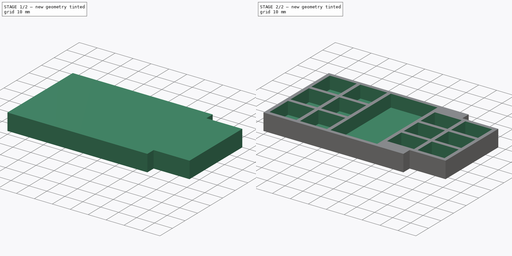
[diagram: build sequence overview — one tinted view per stage of 2, left to right]
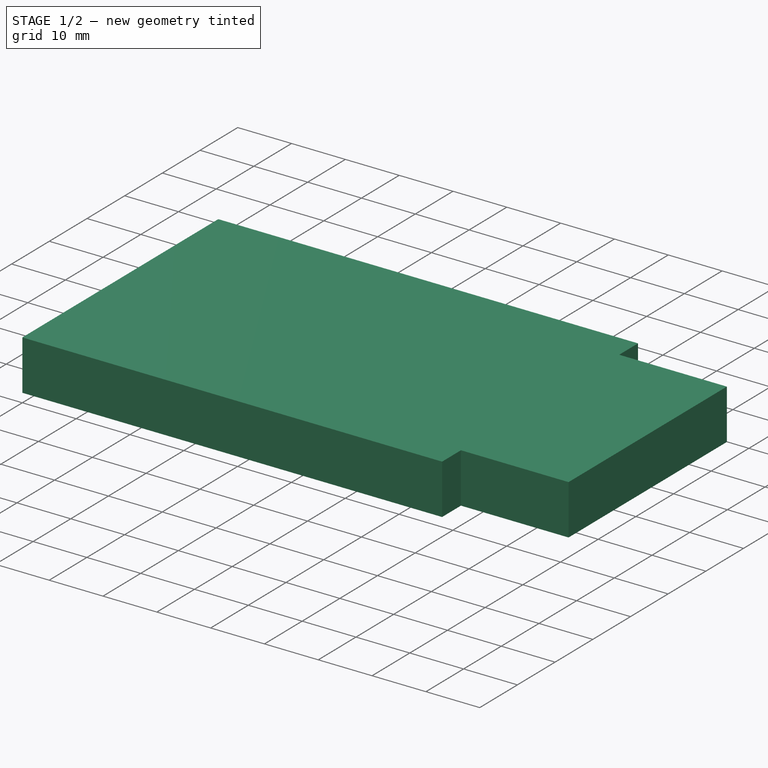
[diagram: stage 1 of 2 — iso view after this stage's code; geometry added in this stage tinted green]
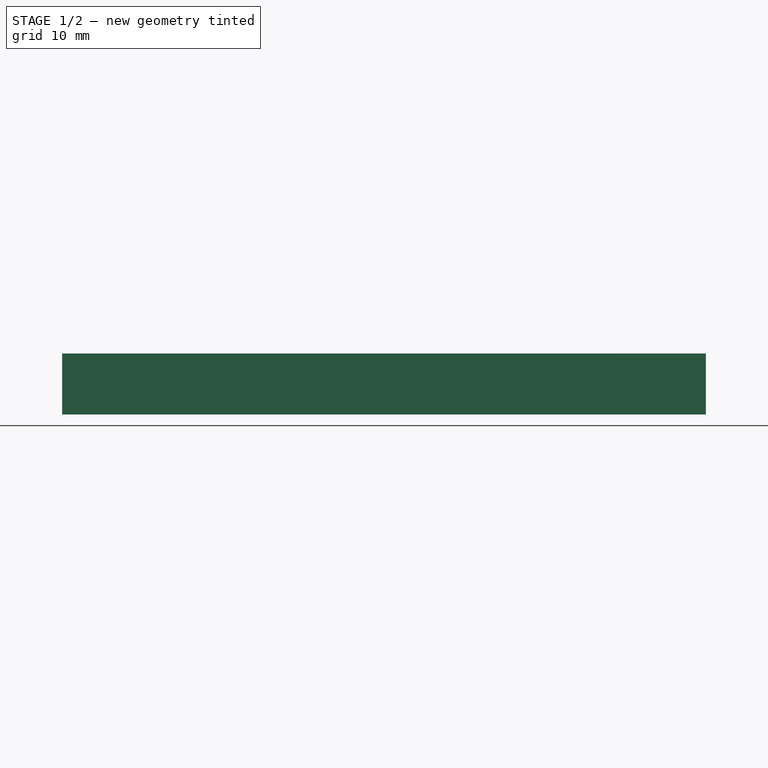
[diagram: stage 1 of 2 — front view after this stage's code; geometry added in this stage tinted green]
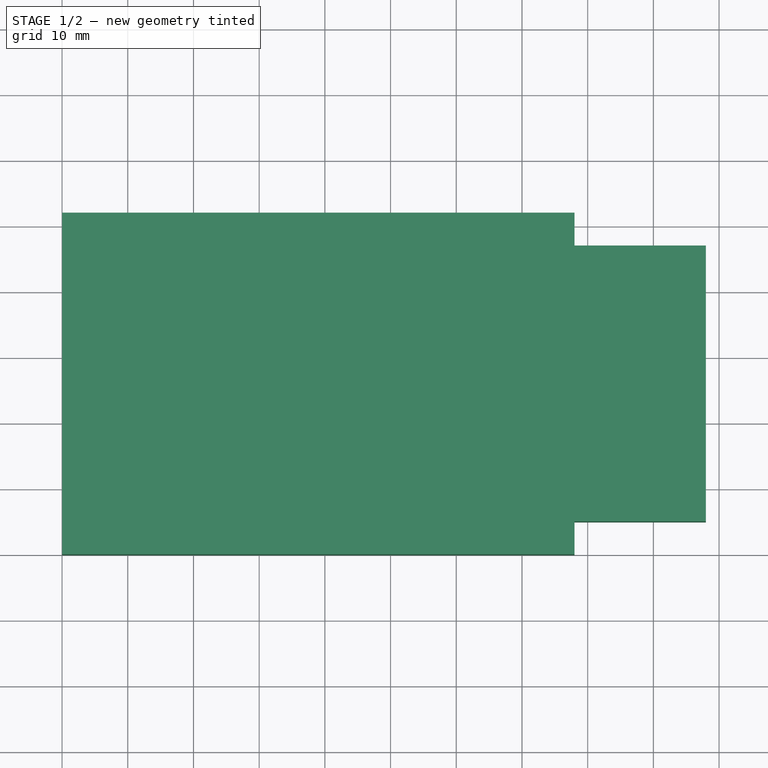
[diagram: stage 1 of 2 — top view after this stage's code; geometry added in this stage tinted green]
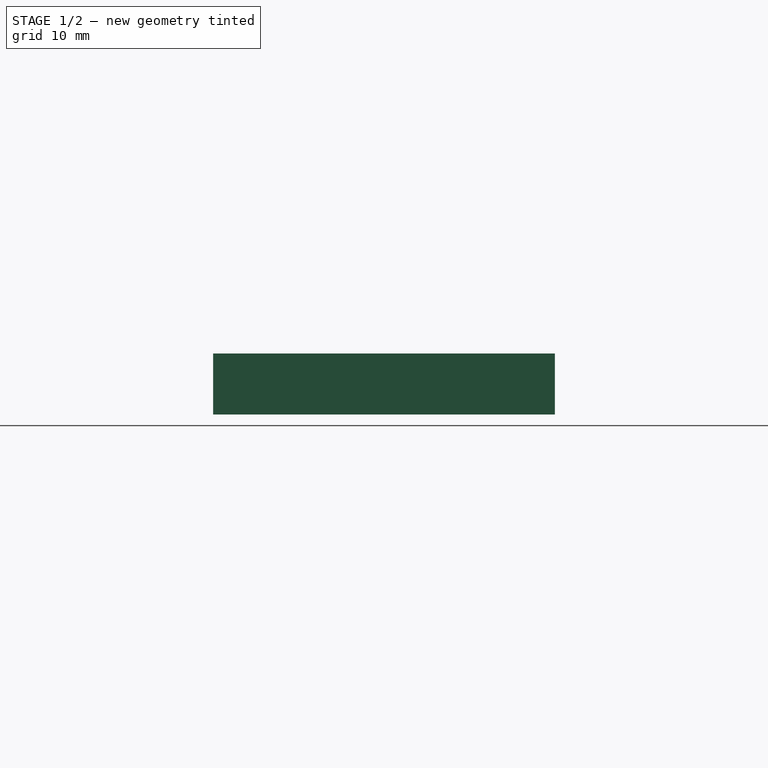
[diagram: stage 1 of 2 — right view after this stage's code; geometry added in this stage tinted green]
FCSTD DOCUMENT  (FreeCAD 0.20R29410 (Git))
Label: paintbox-lower-insert
License: All rights reserved
LicenseURL: http://en.wikipedia.org/wiki/All_rights_reserved
objects: Sketcher::SketchObject×3, PartDesign::Pocket×2, Spreadsheet::Sheet×1, PartDesign::Pad×1, PartDesign::Body×1
note: 10 computed .brp shape members not serialized (recipe doc carries the construction recipe); baked Part::Feature solids carry a one-line shape summary decoded from their .brp

FEATURE [Spreadsheet::Sheet] Spreadsheet  label="p"
  cells = A1=length; B1(length)=98; A2=width; B2(width)=52; A3=height; B3(height)=9.300000000000001; A4=notch_length; B4(notch_length)=20; A5=notch_inset; B5(notch_inset)=5; A6=pan_space; B6(pan_space)=2; A7=pan_length; B7(pan_length)=15; A8=pan_height; B8(pan_height)==44 / 3; A9=pan_height2; B9(pan_height2)==34 / 3; A10=pan_depth; B10(pan_depth)=7
FEATURE [Sketcher::SketchObject] Sketch
  FullyConstrained = true
  MapMode = 5
  Support = -> [XY_Plane]
  expr: Constraints[10] = <<p>>.width
  expr: Constraints[9] = <<p>>.length
  sketch-geometry (4):
    g0: LineSegment StartX=0 StartY=0 StartZ=0 EndX=98 EndY=0 EndZ=0
    g1: LineSegment StartX=98 StartY=0 StartZ=0 EndX=98 EndY=52 EndZ=0
    g2: LineSegment StartX=98 StartY=52 StartZ=0 EndX=0 EndY=52 EndZ=0
    g3: LineSegment StartX=0 StartY=52 StartZ=0 EndX=0 EndY=0 EndZ=0
  constraints (11):
    c: Coincident(g0,g1)
    c: Coincident(g1,g2)
    c: Coincident(g2,g3)
    c: Coincident(g3,g0)
    c: Horizontal(g0)
    c: Horizontal(g2)
    c: Vertical(g1)
    c: Vertical(g3)
    c: Coincident(g0,g-1)
    c: DistanceX(g2,g2) = 98
    c: DistanceY(g1,g1) = 52
FEATURE [PartDesign::Pad] Pad
  Direction = (0,0,1)
  Length = 9.3
  Length2 = 10
  Profile = -> Sketch
  ReferenceAxis = -> Sketch [N_Axis]
  Type = 0
  expr: Length = <<p>>.height
FEATURE [Sketcher::SketchObject] Sketch001
  ExternalGeometry = -> [Pad]
  FullyConstrained = true
  MapMode = 5
  Placement = pos=(0,0,9.3) rot=(0,0,1;0rad)
  Support = -> [Pad]
  expr: Constraints[10] = <<p>>.notch_inset
  expr: Constraints[20] = <<p>>.notch_length
  expr: Constraints[21] = <<p>>.notch_inset
  expr: Constraints[9] = <<p>>.notch_length
  sketch-geometry (8):
    g0: LineSegment StartX=98 StartY=52 StartZ=0 EndX=78 EndY=52 EndZ=0
    g1: LineSegment StartX=78 StartY=52 StartZ=0 EndX=78 EndY=47 EndZ=0
    g2: LineSegment StartX=78 StartY=47 StartZ=0 EndX=98 EndY=47 EndZ=0
    g3: LineSegment StartX=98 StartY=47 StartZ=0 EndX=98 EndY=52 EndZ=0
    g4: LineSegment StartX=98 StartY=0 StartZ=0 EndX=78 EndY=0 EndZ=0
    g5: LineSegment StartX=78 StartY=0 StartZ=0 EndX=78 EndY=5 EndZ=0
    g6: LineSegment StartX=78 StartY=5 StartZ=0 EndX=98 EndY=5 EndZ=0
    g7: LineSegment StartX=98 StartY=5 StartZ=0 EndX=98 EndY=0 EndZ=0
  constraints (22):
    c: Coincident(g0,g1)
    c: Coincident(g1,g2)
    c: Coincident(g2,g3)
    c: Coincident(g3,g0)
    c: Horizontal(g0)
    c: Horizontal(g2)
    c: Vertical(g1)
    c: Vertical(g3)
    c: Coincident(g0,g-3)
    c: DistanceX(g0,g0) = 20
    c: DistanceY(g1,g1) = 5
    c: Coincident(g4,g5)
    c: Coincident(g5,g6)
    c: Coincident(g6,g7)
    c: Coincident(g7,g4)
    c: Horizontal(g4)
    c: Horizontal(g6)
    c: Vertical(g5)
    c: Vertical(g7)
    c: Coincident(g4,g-3)
    c: DistanceX(g6,g6) = 20
    c: DistanceY(g5,g5) = 5
FEATURE [PartDesign::Pocket] Pocket
  BaseFeature = -> Pad
  Direction = (0,0,-1)
  Length = 5
  Length2 = 5
  Profile = -> Sketch001
  ReferenceAxis = -> Sketch001 [N_Axis]
  Type = 1
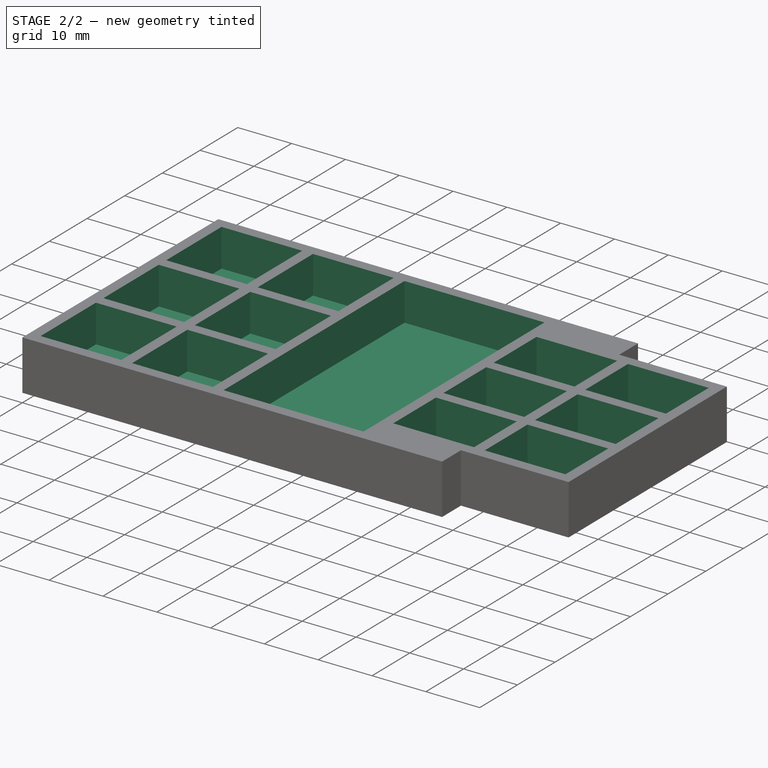
[diagram: stage 2 of 2 — iso view after this stage's code; geometry added in this stage tinted green]
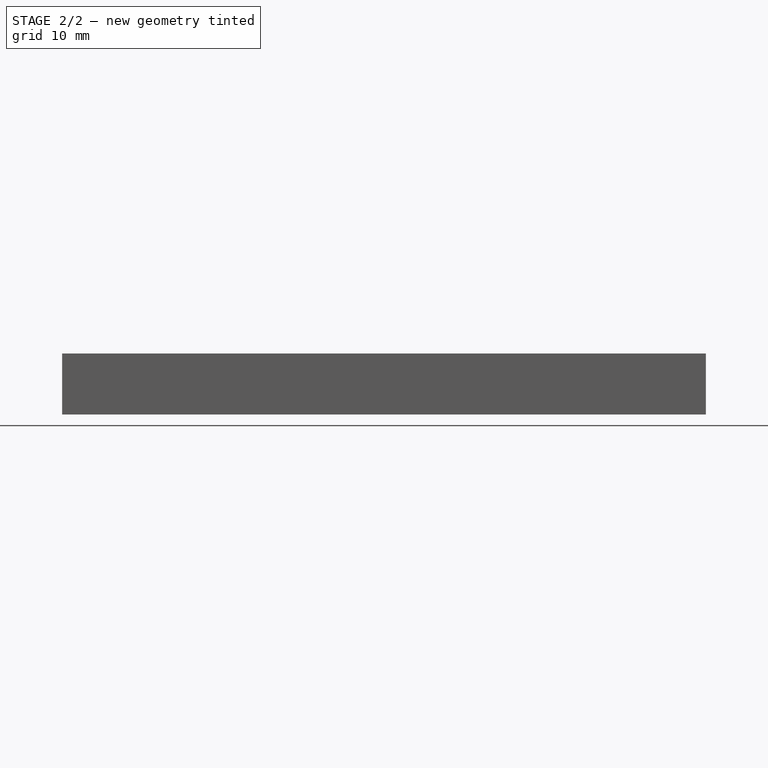
[diagram: stage 2 of 2 — front view after this stage's code; geometry added in this stage tinted green]
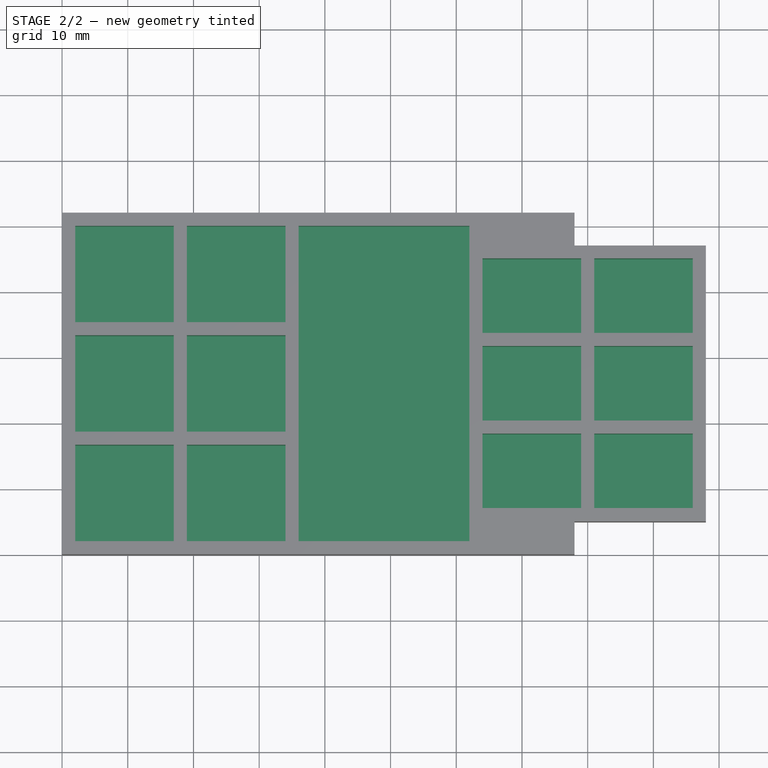
[diagram: stage 2 of 2 — top view after this stage's code; geometry added in this stage tinted green]
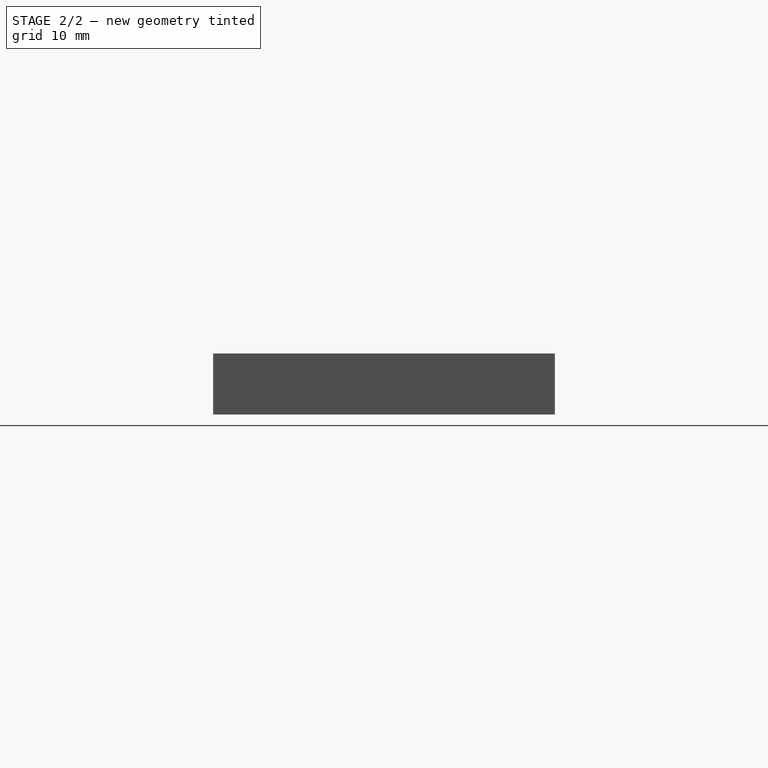
[diagram: stage 2 of 2 — right view after this stage's code; geometry added in this stage tinted green]
FEATURE [Sketcher::SketchObject] Sketch002
  FullyConstrained = false
  MapMode = 5
  Placement = pos=(0,0,9.3) rot=(0,0,1;0rad)
  Support = -> [Pad]
  expr: Constraints[104] = <<p>>.pan_height
  expr: Constraints[105] = <<p>>.pan_height
  expr: Constraints[106] = <<p>>.pan_height
  expr: Constraints[107] = <<p>>.pan_height
  expr: Constraints[108] = <<p>>.pan_height
  expr: Constraints[109] = <<p>>.pan_height
  expr: Constraints[110] = <<p>>.pan_height2
  expr: Constraints[111] = <<p>>.pan_height2
  expr: Constraints[112] = <<p>>.pan_height2
  expr: Constraints[113] = <<p>>.pan_height2
  expr: Constraints[114] = <<p>>.pan_height2
  expr: Constraints[115] = <<p>>.pan_height2
  expr: Constraints[116] = <<p>>.pan_space
  expr: Constraints[117] = <<p>>.pan_space
  expr: Constraints[118] = <<p>>.pan_space
  expr: Constraints[119] = <<p>>.pan_length
  expr: Constraints[120] = <<p>>.pan_length
  expr: Constraints[121] = <<p>>.pan_length
  expr: Constraints[122] = <<p>>.pan_length
  expr: Constraints[123] = <<p>>.pan_length
  expr: Constraints[124] = <<p>>.pan_length
  expr: Constraints[125] = <<p>>.pan_space
  expr: Constraints[126] = <<p>>.pan_space
  expr: Constraints[127] = <<p>>.pan_space
  expr: Constraints[128] = <<p>>.pan_space
  expr: Constraints[129] = <<p>>.pan_space
  expr: Constraints[130] = <<p>>.pan_space
  expr: Constraints[131] = <<p>>.pan_space
  expr: Constraints[132] = <<p>>.pan_space
  expr: Constraints[133] = <<p>>.pan_space
  expr: Constraints[134] = <<p>>.pan_space
  expr: Constraints[136] = <<p>>.pan_space
  expr: Constraints[137] = <<p>>.pan_length
  expr: Constraints[138] = <<p>>.pan_length
  expr: Constraints[139] = <<p>>.pan_length
  expr: Constraints[140] = <<p>>.pan_length
  expr: Constraints[141] = <<p>>.pan_length
  expr: Constraints[142] = <<p>>.pan_length
  expr: Constraints[143] = <<p>>.pan_space
  expr: Constraints[144] = <<p>>.pan_space
  expr: Constraints[145] = <<p>>.pan_space
  expr: Constraints[146] = <<p>>.pan_space
  expr: Constraints[147] = <<p>>.pan_space
  expr: Constraints[148] = <<p>>.pan_space
  expr: Constraints[149] = <<p>>.pan_space
  expr: Constraints[150] = <<p>>.pan_space
  expr: Constraints[151] = <<p>>.pan_space
  expr: Constraints[152] = <<p>>.pan_space
  expr: Constraints[154] = <<p>>.length - <<p>>.pan_space
  sketch-geometry (52):
    g0: LineSegment StartX=2 StartY=50 StartZ=0 EndX=17 EndY=50 EndZ=0
    g1: LineSegment StartX=17 StartY=50 StartZ=0 EndX=17 EndY=35.3333 EndZ=0
    g2: LineSegment StartX=17 StartY=35.3333 StartZ=0 EndX=2 EndY=35.3333 EndZ=0
    g3: LineSegment StartX=2 StartY=35.3333 StartZ=0 EndX=2 EndY=50 EndZ=0
    g4: LineSegment StartX=2 StartY=33.3333 StartZ=0 EndX=17 EndY=33.3333 EndZ=0
    g5: LineSegment StartX=17 StartY=33.3333 StartZ=0 EndX=17 EndY=18.6667 EndZ=0
    g6: LineSegment StartX=17 StartY=18.6667 StartZ=0 EndX=2 EndY=18.6667 EndZ=0
    g7: LineSegment StartX=2 StartY=18.6667 StartZ=0 EndX=2 EndY=33.3333 EndZ=0
    g8: LineSegment StartX=2 StartY=16.6667 StartZ=0 EndX=17 EndY=16.6667 EndZ=0
    g9: LineSegment StartX=17 StartY=16.6667 StartZ=0 EndX=17 EndY=2 EndZ=0
    g10: LineSegment StartX=17 StartY=2 StartZ=0 EndX=2 EndY=2 EndZ=0
    g11: LineSegment StartX=2 StartY=2 StartZ=0 EndX=2 EndY=16.6667 EndZ=0
    g12: LineSegment StartX=19 StartY=50 StartZ=0 EndX=34 EndY=50 EndZ=0
    g13: LineSegment StartX=34 StartY=50 StartZ=0 EndX=34 EndY=35.3333 EndZ=0
    g14: LineSegment StartX=34 StartY=35.3333 StartZ=0 EndX=19 EndY=35.3333 EndZ=0
    g15: LineSegment StartX=19 StartY=35.3333 StartZ=0 EndX=19 EndY=50 EndZ=0
    g16: LineSegment StartX=19 StartY=33.3333 StartZ=0 EndX=34 EndY=33.3333 EndZ=0
    g17: LineSegment StartX=34 StartY=33.3333 StartZ=0 EndX=34 EndY=18.6667 EndZ=0
    g18: LineSegment StartX=34 StartY=18.6667 StartZ=0 EndX=19 EndY=18.6667 EndZ=0
    g19: LineSegment StartX=19 StartY=18.6667 StartZ=0 EndX=19 EndY=33.3333 EndZ=0
    g20: LineSegment StartX=19 StartY=16.6667 StartZ=0 EndX=34 EndY=16.6667 EndZ=0
    g21: LineSegment StartX=34 StartY=16.6667 StartZ=0 EndX=34 EndY=2 EndZ=0
    g22: LineSegment StartX=34 StartY=2 StartZ=0 EndX=19 EndY=2 EndZ=0
    g23: LineSegment StartX=19 StartY=2 StartZ=0 EndX=19 EndY=16.6667 EndZ=0
    g24: LineSegment StartX=36 StartY=50 StartZ=0 EndX=62 EndY=50 EndZ=0
    g25: LineSegment StartX=62 StartY=50 StartZ=0 EndX=62 EndY=2 EndZ=0
    g26: LineSegment StartX=62 StartY=2 StartZ=0 EndX=36 EndY=2 EndZ=0
    g27: LineSegment StartX=36 StartY=2 StartZ=0 EndX=36 EndY=50 EndZ=0
    g28: LineSegment StartX=64 StartY=45.0381 StartZ=0 EndX=79 EndY=45.0381 EndZ=0
    g29: LineSegment StartX=79 StartY=45.0381 StartZ=0 EndX=79 EndY=33.7048 EndZ=0
    g30: LineSegment StartX=79 StartY=33.7048 StartZ=0 EndX=64 EndY=33.7048 EndZ=0
    g31: LineSegment StartX=64 StartY=33.7048 StartZ=0 EndX=64 EndY=45.0381 EndZ=0
    g32: LineSegment StartX=64 StartY=31.7048 StartZ=0 EndX=79 EndY=31.7048 EndZ=0
    g33: LineSegment StartX=79 StartY=31.7048 StartZ=0 EndX=79 EndY=20.3715 EndZ=0
    g34: LineSegment StartX=79 StartY=20.3715 StartZ=0 EndX=64 EndY=20.3715 EndZ=0
    g35: LineSegment StartX=64 StartY=20.3715 StartZ=0 EndX=64 EndY=31.7048 EndZ=0
    g36: LineSegment StartX=64 StartY=18.3715 StartZ=0 EndX=79 EndY=18.3715 EndZ=0
    g37: LineSegment StartX=79 StartY=18.3715 StartZ=0 EndX=79 EndY=7.03812 EndZ=0
    g38: LineSegment StartX=79 StartY=7.03812 StartZ=0 EndX=64 EndY=7.03812 EndZ=0
    g39: LineSegment StartX=64 StartY=7.03812 StartZ=0 EndX=64 EndY=18.3715 EndZ=0
    g40: LineSegment StartX=81 StartY=45.0381 StartZ=0 EndX=96 EndY=45.0381 EndZ=0
    g41: LineSegment StartX=96 StartY=45.0381 StartZ=0 EndX=96 EndY=33.7048 EndZ=0
    g42: LineSegment StartX=96 StartY=33.7048 StartZ=0 EndX=81 EndY=33.7048 EndZ=0
    g43: LineSegment StartX=81 StartY=33.7048 StartZ=0 EndX=81 EndY=45.0381 EndZ=0
    g44: LineSegment StartX=81 StartY=31.7048 StartZ=0 EndX=96 EndY=31.7048 EndZ=0
    g45: LineSegment StartX=96 StartY=31.7048 StartZ=0 EndX=96 EndY=20.3715 EndZ=0
    g46: LineSegment StartX=96 StartY=20.3715 StartZ=0 EndX=81 EndY=20.3715 EndZ=0
    g47: LineSegment StartX=81 StartY=20.3715 StartZ=0 EndX=81 EndY=31.7048 EndZ=0
    g48: LineSegment StartX=81 StartY=18.3715 StartZ=0 EndX=96 EndY=18.3715 EndZ=0
    g49: LineSegment StartX=96 StartY=18.3715 StartZ=0 EndX=96 EndY=7.03812 EndZ=0
    g50: LineSegment StartX=96 StartY=7.03812 StartZ=0 EndX=81 EndY=7.03812 EndZ=0
    g51: LineSegment StartX=81 StartY=7.03812 StartZ=0 EndX=81 EndY=18.3715 EndZ=0
  constraints (155):
    c: Coincident(g0,g1)
    c: Coincident(g1,g2)
    c: Coincident(g2,g3)
    c: Coincident(g3,g0)
    c: Horizontal(g0)
    c: Horizontal(g2)
    c: Vertical(g1)
    c: Vertical(g3)
    c: Coincident(g4,g5)
    c: Coincident(g5,g6)
    c: Coincident(g6,g7)
    c: Coincident(g7,g4)
    c: Horizontal(g4)
    c: Horizontal(g6)
    c: Vertical(g5)
    c: Vertical(g7)
    c: Coincident(g8,g9)
    c: Coincident(g9,g10)
    c: Coincident(g10,g11)
    c: Coincident(g11,g8)
    c: Horizontal(g8)
    c: Horizontal(g10)
    c: Vertical(g9)
    c: Vertical(g11)
    c: Coincident(g12,g13)
    c: Coincident(g13,g14)
    c: Coincident(g14,g15)
    c: Coincident(g15,g12)
    c: Horizontal(g12)
    c: Horizontal(g14)
    c: Vertical(g13)
    c: Vertical(g15)
    c: Coincident(g16,g17)
    c: Coincident(g17,g18)
    c: Coincident(g18,g19)
    c: Coincident(g19,g16)
    c: Horizontal(g16)
    c: Horizontal(g18)
    c: Vertical(g17)
    c: Vertical(g19)
    c: Coincident(g20,g21)
    c: Coincident(g21,g22)
    c: Coincident(g22,g23)
    c: Coincident(g23,g20)
    c: Horizontal(g20)
    c: Horizontal(g22)
    c: Vertical(g21)
    c: Vertical(g23)
    c: Coincident(g24,g25)
    c: Coincident(g25,g26)
    c: Coincident(g26,g27)
    c: Coincident(g27,g24)
    c: Horizontal(g24)
    c: Horizontal(g26)
    c: Vertical(g25)
    c: Vertical(g27)
    c: Coincident(g28,g29)
    c: Coincident(g29,g30)
    c: Coincident(g30,g31)
    c: Coincident(g31,g28)
    c: Horizontal(g28)
    c: Horizontal(g30)
    c: Vertical(g29)
    c: Vertical(g31)
    c: Coincident(g32,g33)
    c: Coincident(g33,g34)
    c: Coincident(g34,g35)
    c: Coincident(g35,g32)
    c: Horizontal(g32)
    c: Horizontal(g34)
    c: Vertical(g33)
    c: Vertical(g35)
    c: Coincident(g36,g37)
    c: Coincident(g37,g38)
    c: Coincident(g38,g39)
    c: Coincident(g39,g36)
    c: Horizontal(g36)
    c: Horizontal(g38)
    c: Vertical(g37)
    c: Vertical(g39)
    c: Coincident(g40,g41)
    c: Coincident(g41,g42)
    c: Coincident(g42,g43)
    c: Coincident(g43,g40)
    c: Horizontal(g40)
    c: Horizontal(g42)
    c: Vertical(g41)
    c: Vertical(g43)
    c: Coincident(g44,g45)
    c: Coincident(g45,g46)
    c: Coincident(g46,g47)
    c: Coincident(g47,g44)
    c: Horizontal(g44)
    c: Horizontal(g46)
    c: Vertical(g45)
    c: Vertical(g47)
    c: Coincident(g48,g49)
    c: Coincident(g49,g50)
    c: Coincident(g50,g51)
    c: Coincident(g51,g48)
    c: Horizontal(g48)
    c: Horizontal(g50)
    c: Vertical(g49)
    c: Vertical(g51)
    c: DistanceY(g3,g3) = 14.6667
    c: DistanceY(g7,g7) = 14.6667
    c: DistanceY(g11,g11) = 14.6667
    c: DistanceY(g15,g15) = 14.6667
    c: DistanceY(g19,g19) = 14.6667
    c: DistanceY(g23,g23) = 14.6667
    c: DistanceY(g31,g31) = 11.3333
    c: DistanceY(g35,g35) = 11.3333
    c: DistanceY(g39,g39) = 11.3333
    c: DistanceY(g43,g43) = 11.3333
    c: DistanceY(g47,g47) = 11.3333
    c: DistanceY(g51,g51) = 11.3333
    c: DistanceX(g-1,g0) = 2
    c: DistanceX(g-1,g6) = 2
    c: DistanceX(g-1,g8) = 2
    c: DistanceX(g0,g0) = 15
    c: DistanceX(g4,g4) = 15
    c: DistanceX(g8,g8) = 15
    c: DistanceX(g12,g12) = 15
    c: DistanceX(g16,g16) = 15
    c: DistanceX(g20,g20) = 15
    c: DistanceY(g-1,g10) = 2
    c: DistanceY(g8,g6) = 2
    c: DistanceY(g4,g2) = 2
    c: DistanceY(g-1,g22) = 2
    c: DistanceY(g20,g18) = 2
    c: DistanceY(g16,g14) = 2
    c: DistanceX(g1,g14) = 2
    c: DistanceX(g5,g18) = 2
    c: DistanceX(g9,g22) = 2
    c: DistanceY(g-1,g26) = 2
    c: DistanceY(g24,g12) = 0
    c: DistanceX(g21,g26) = 2
    c: DistanceX(g28,g28) = 15
    c: DistanceX(g34,g34) = 15
    c: DistanceX(g36,g36) = 15
    c: DistanceX(g48,g48) = 15
    c: DistanceX(g46,g46) = 15
    c: DistanceX(g40,g40) = 15
    c: DistanceX(g24,g28) = 2
    c: DistanceX(g24,g32) = 2
    c: DistanceX(g24,g36) = 2
    c: DistanceX(g28,g40) = 2
    c: DistanceX(g32,g44) = 2
    c: DistanceX(g36,g48) = 2
    c: DistanceY(g36,g34) = 2
    c: DistanceY(g32,g30) = 2
    c: DistanceY(g44,g42) = 2
    c: DistanceY(g48,g46) = 2
    c: DistanceY(g50,g37) = 0
    c: DistanceX(g-1,g49) = 96
FEATURE [PartDesign::Pocket] Pocket001
  BaseFeature = -> Pocket
  Direction = (0,0,-1)
  Length = 7
  Length2 = 5
  Profile = -> Sketch002
  ReferenceAxis = -> Sketch002 [N_Axis]
  Type = 0
  expr: Length = <<p>>.pan_depth
FEATURE [PartDesign::Body] Body
  Group = -> [Sketch,Pad,Sketch001,Pocket,Sketch002,Pocket001]
  Origin = -> Origin
  Tip = -> Pocket001
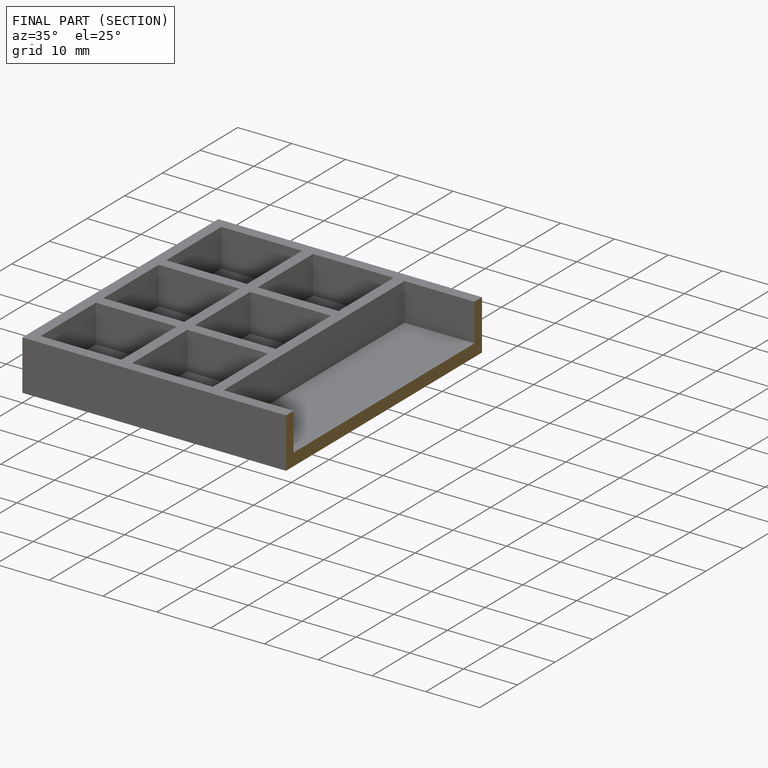
[diagram: finished part — half-section view (interior)]
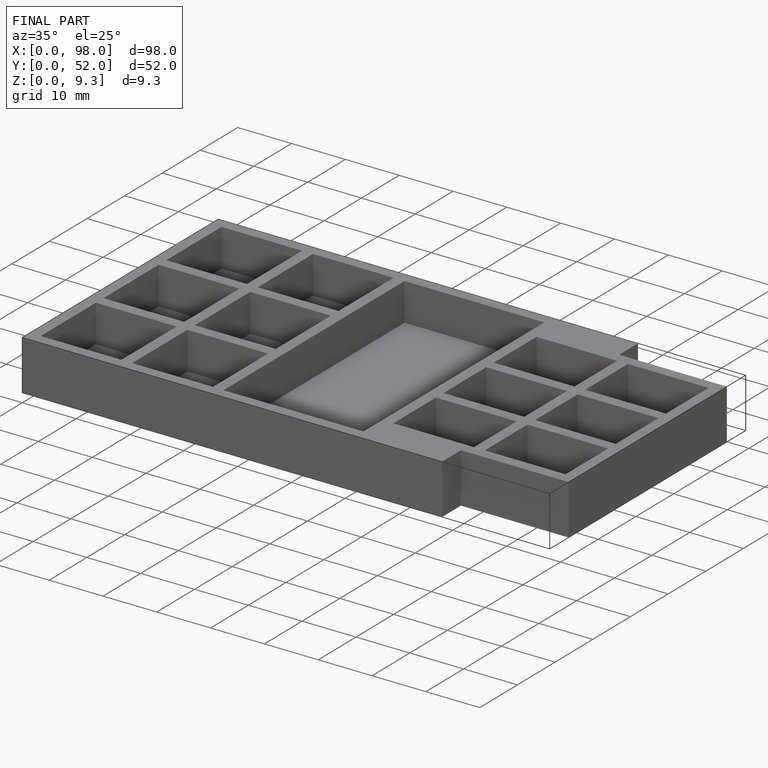
[diagram: finished part — iso view with bounding-box wireframe]
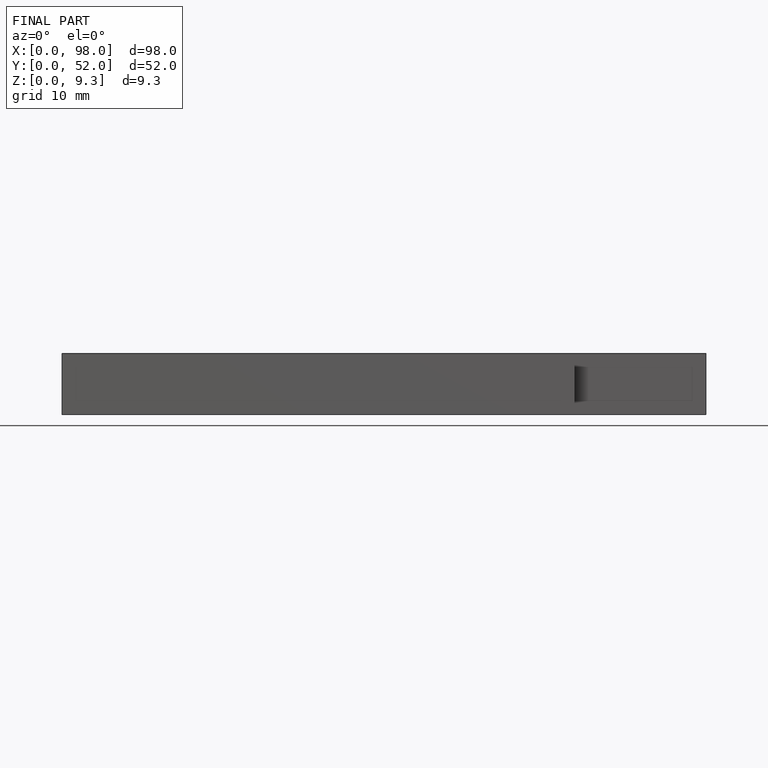
[diagram: finished part — front view with bounding-box wireframe]
